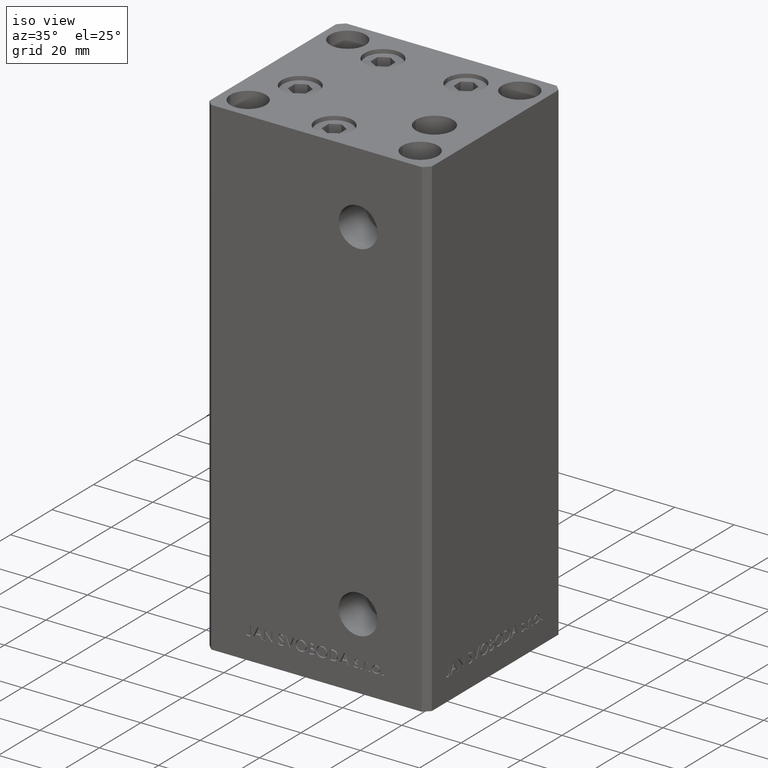
[diagram: clean part render]
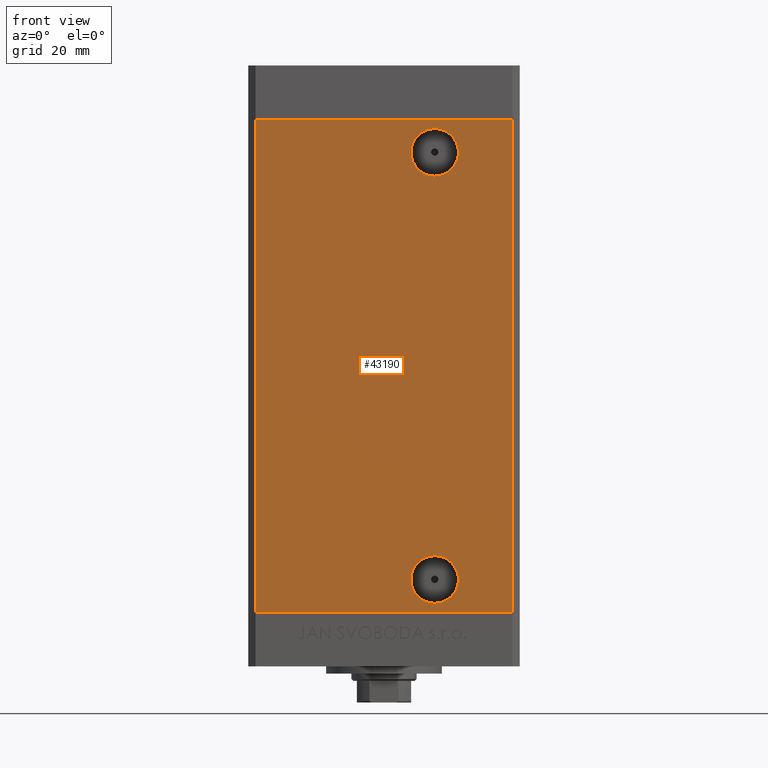
[diagram: tour spotlight — one face highlighted and labeled with its STEP entity id]
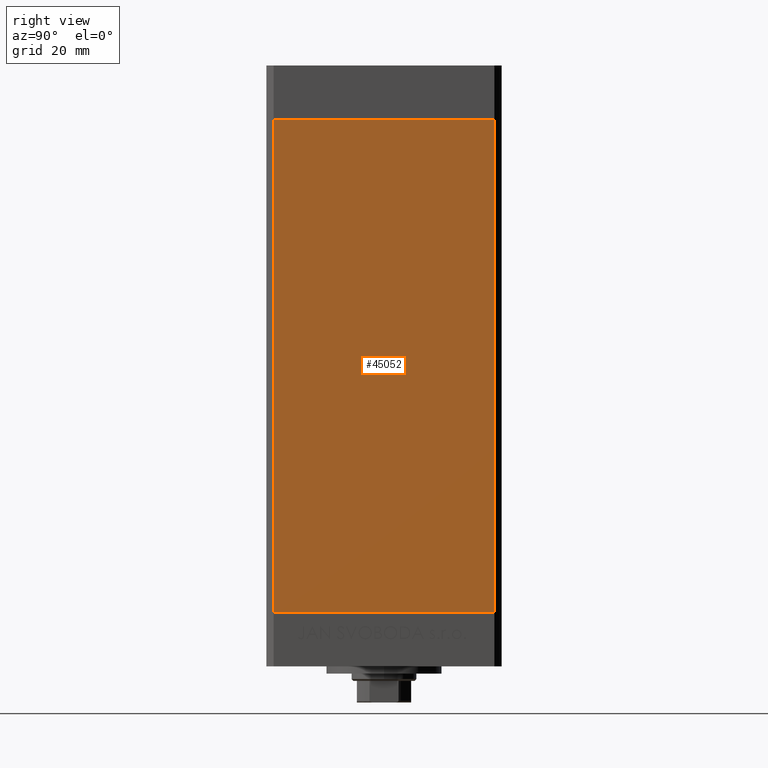
[diagram: tour spotlight — one face highlighted and labeled with its STEP entity id]
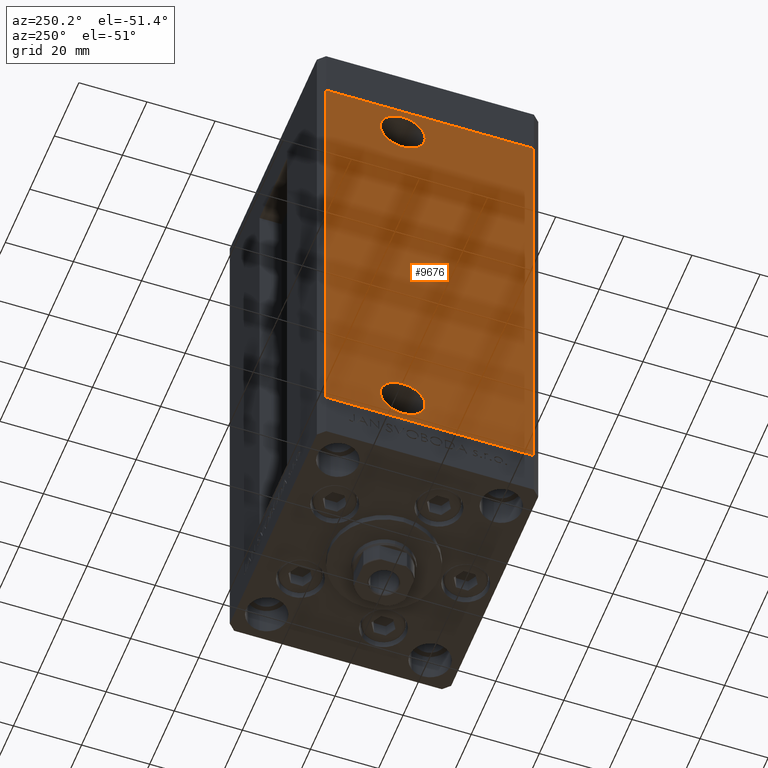
[diagram: tour spotlight — one face highlighted and labeled with its STEP entity id]
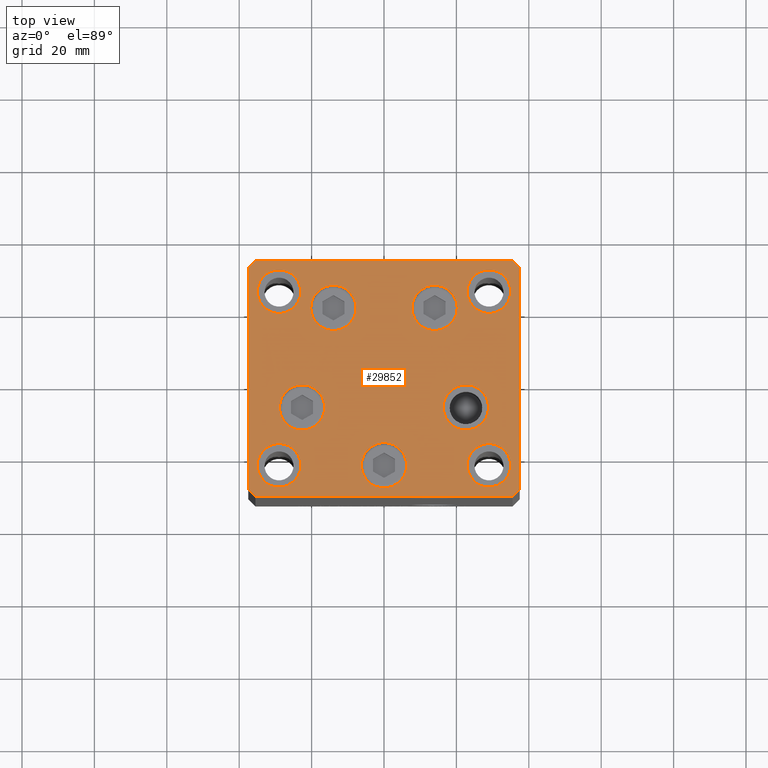
[diagram: tour spotlight — one face highlighted and labeled with its STEP entity id]
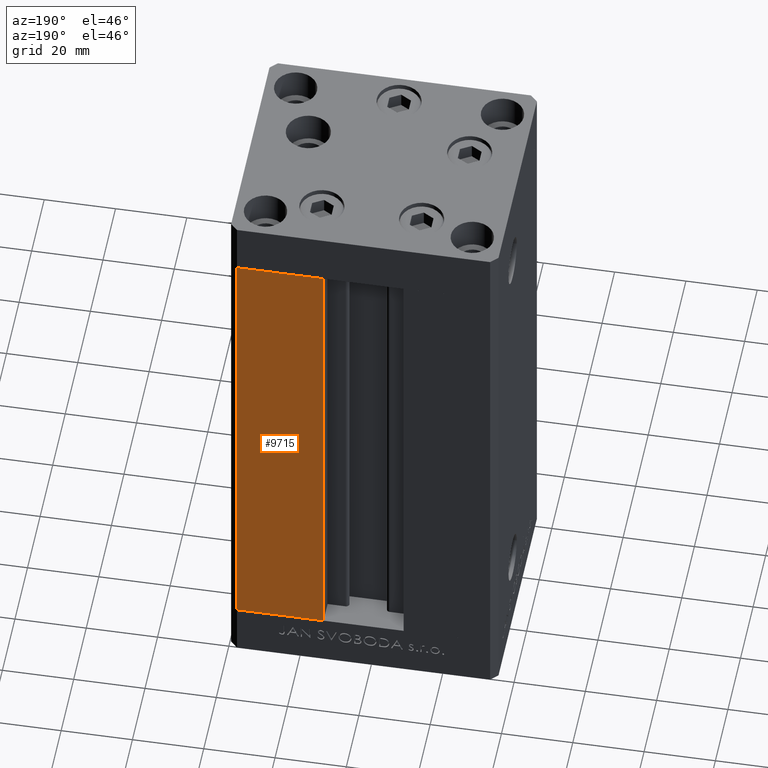
[diagram: tour spotlight — one face highlighted and labeled with its STEP entity id]
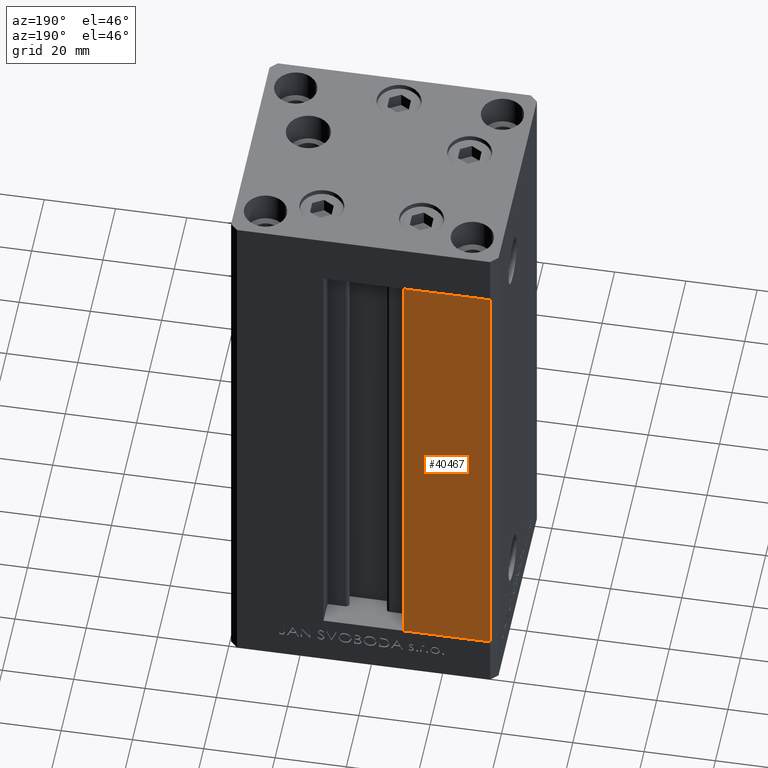
[diagram: tour spotlight — one face highlighted and labeled with its STEP entity id]
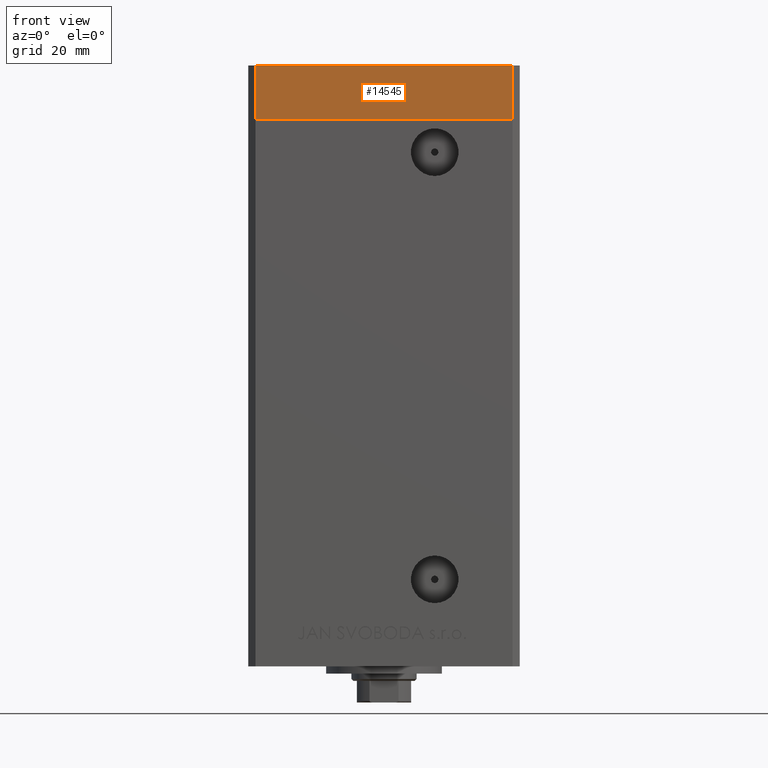
[diagram: tour spotlight — one face highlighted and labeled with its STEP entity id]
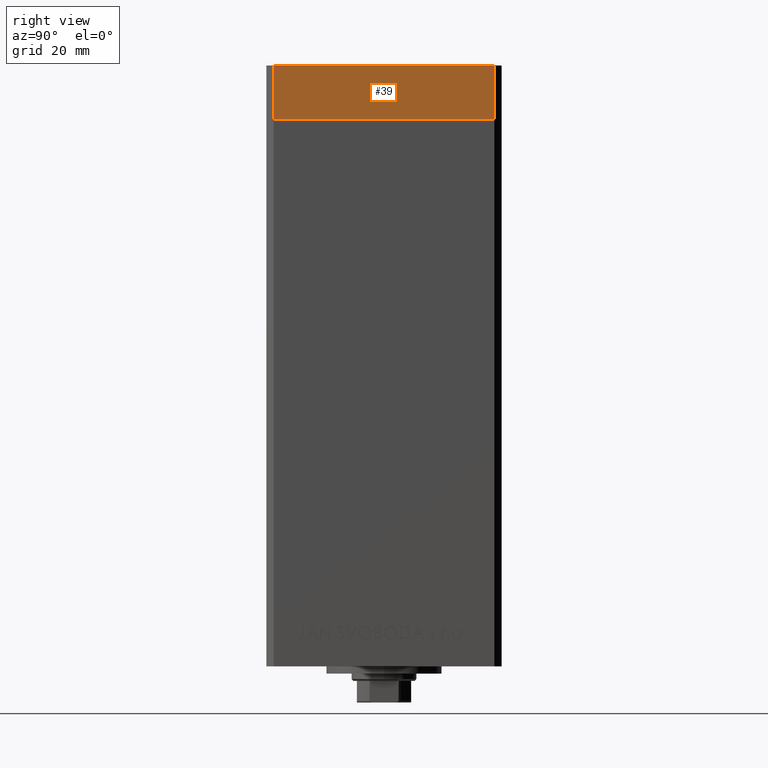
[diagram: tour spotlight — one face highlighted and labeled with its STEP entity id]
A machine part: a face-by-face anatomy tour. The part has 1179 B-rep faces; the first image is the clean iso view, then the 8 largest visible faces are spotlighted one at a time (largest first), each with its STEP entity span.

Face 1 — front view, entity #43190. In plain terms, the highlighted planar face has unit normal (0, 1, 0).
Definition (entity closure, byte-faithful):
#2102 = CARTESIAN_POINT ( 'NONE',  ( 13.99999999999999112, -32.50000000000000000, 15.58000000000000718 ) ) ;
#2916 = FACE_BOUND ( 'NONE', #35611, .T. ) ;
#3412 = PLANE ( 'NONE',  #19473 ) ;
#4023 = DIRECTION ( 'NONE',  ( 0.000000000000000000, 0.000000000000000000, -1.000000000000000000 ) ) ;
#6165 = ORIENTED_EDGE ( 'NONE', *, *, #29281, .T. ) ;
#6493 = EDGE_CURVE ( 'NONE', #25793, #39107, #39932, .T. ) ;
#7378 = ORIENTED_EDGE ( 'NONE', *, *, #47050, .T. ) ;
#7542 = DIRECTION ( 'NONE',  ( 0.000000000000000000, -1.000000000000000000, 0.000000000000000000 ) ) ;
#10699 = DIRECTION ( 'NONE',  ( 0.000000000000000000, 1.000000000000000000, 0.000000000000000000 ) ) ;
#10941 = FACE_OUTER_BOUND ( 'NONE', #40899, .T. ) ;
#11008 = LINE ( 'NONE', #34591, #26040 ) ;
#11549 = CARTESIAN_POINT ( 'NONE',  ( 13.99999999999999112, -32.50000000000000000, 9.000000000000007105 ) ) ;
#11756 = VERTEX_POINT ( 'NONE', #29317 ) ;
#12580 = EDGE_CURVE ( 'NONE', #11756, #41226, #39308, .T. ) ;
#15166 = AXIS2_PLACEMENT_3D ( 'NONE', #26519, #38043, #30763 ) ;
#16385 = DIRECTION ( 'NONE',  ( -0.000000000000000000, 1.000000000000000000, -0.000000000000000000 ) ) ;
#19079 = CARTESIAN_POINT ( 'NONE',  ( 35.49999999999999289, -32.50000000000000000, 0.000000000000000000 ) ) ;
#19473 = AXIS2_PLACEMENT_3D ( 'NONE', #41331, #10699, #26276 ) ;
#22470 = CARTESIAN_POINT ( 'NONE',  ( 35.49999999999999289, -32.50000000000000000, 136.0000000000000000 ) ) ;
#24068 = ORIENTED_EDGE ( 'NONE', *, *, #33069, .F. ) ;
#24472 = LINE ( 'NONE', #39782, #34084 ) ;
#25220 = DIRECTION ( 'NONE',  ( 1.000000000000000000, 0.000000000000000000, 0.000000000000000000 ) ) ;
#25650 = CARTESIAN_POINT ( 'NONE',  ( -35.49999999999999289, -32.50000000000000000, 0.000000000000000000 ) ) ;
#25717 = EDGE_CURVE ( 'NONE', #47593, #31928, #28004, .T. ) ;
#25793 = VERTEX_POINT ( 'NONE', #47574 ) ;
#26024 = FACE_BOUND ( 'NONE', #34524, .T. ) ;
#26040 = VECTOR ( 'NONE', #45429, 1000.000000000000000 ) ;
#26242 = DIRECTION ( 'NONE',  ( -0.000000000000000000, -0.000000000000000000, -1.000000000000000000 ) ) ;
#26276 = DIRECTION ( 'NONE',  ( 0.000000000000000000, -0.000000000000000000, 1.000000000000000000 ) ) ;
#26519 = CARTESIAN_POINT ( 'NONE',  ( 13.99999999999999112, -32.50000000000000000, 9.000000000000007105 ) ) ;
#27134 = DIRECTION ( 'NONE',  ( -0.000000000000000000, 1.000000000000000000, -0.000000000000000000 ) ) ;
#28004 = CIRCLE ( 'NONE', #15166, 6.579999999999998295 ) ;
#29281 = EDGE_CURVE ( 'NONE', #39107, #25793, #42526, .T. ) ;
#29317 = CARTESIAN_POINT ( 'NONE',  ( -35.49999999999999289, -32.50000000000000000, 136.0000000000000000 ) ) ;
#29595 = ORIENTED_EDGE ( 'NONE', *, *, #25717, .F. ) ;
#29899 = DIRECTION ( 'NONE',  ( 0.000000000000000000, 0.000000000000000000, -1.000000000000000000 ) ) ;
#29905 = CARTESIAN_POINT ( 'NONE',  ( 13.99999999999999112, -32.50000000000000000, 127.0000000000000000 ) ) ;
#30242 = LINE ( 'NONE', #22470, #45977 ) ;
#30763 = DIRECTION ( 'NONE',  ( 0.000000000000000000, 0.000000000000000000, -1.000000000000000000 ) ) ;
#30930 = CARTESIAN_POINT ( 'NONE',  ( 35.49999999999999289, -32.50000000000000000, 136.0000000000000000 ) ) ;
#31928 = VERTEX_POINT ( 'NONE', #2102 ) ;
#32114 = AXIS2_PLACEMENT_3D ( 'NONE', #29905, #27134, #4023 ) ;
#33069 = EDGE_CURVE ( 'NONE', #31928, #47593, #39428, .T. ) ;
#34084 = VECTOR ( 'NONE', #25220, 1000.000000000000000 ) ;
#34235 = VERTEX_POINT ( 'NONE', #25650 ) ;
#34524 = EDGE_LOOP ( 'NONE', ( #29595, #24068 ) ) ;
#34591 = CARTESIAN_POINT ( 'NONE',  ( -35.49999999999999289, -32.50000000000000000, 136.0000000000000000 ) ) ;
#34621 = AXIS2_PLACEMENT_3D ( 'NONE', #11549, #7542, #29899 ) ;
#34720 = DIRECTION ( 'NONE',  ( 0.000000000000000000, 0.000000000000000000, -1.000000000000000000 ) ) ;
#35263 = CARTESIAN_POINT ( 'NONE',  ( 13.99999999999999112, -32.50000000000000000, 2.420000000000009699 ) ) ;
#35424 = CARTESIAN_POINT ( 'NONE',  ( 13.99999999999999112, -32.50000000000000000, 133.5800000000000125 ) ) ;
#35611 = EDGE_LOOP ( 'NONE', ( #39472, #6165 ) ) ;
#35798 = EDGE_CURVE ( 'NONE', #41226, #41493, #30242, .T. ) ;
#37749 = ORIENTED_EDGE ( 'NONE', *, *, #35798, .F. ) ;
#38043 = DIRECTION ( 'NONE',  ( 0.000000000000000000, -1.000000000000000000, 0.000000000000000000 ) ) ;
#38496 = CARTESIAN_POINT ( 'NONE',  ( 13.99999999999999112, -32.50000000000000000, 127.0000000000000000 ) ) ;
#38819 = CARTESIAN_POINT ( 'NONE',  ( -35.49999999999999289, -32.50000000000000000, 136.0000000000000000 ) ) ;
#39107 = VERTEX_POINT ( 'NONE', #35424 ) ;
#39308 = LINE ( 'NONE', #38819, #39686 ) ;
#39428 = CIRCLE ( 'NONE', #34621, 6.579999999999998295 ) ;
#39472 = ORIENTED_EDGE ( 'NONE', *, *, #6493, .T. ) ;
#39551 = DIRECTION ( 'NONE',  ( 1.000000000000000000, 0.000000000000000000, 0.000000000000000000 ) ) ;
#39686 = VECTOR ( 'NONE', #39551, 1000.000000000000000 ) ;
#39782 = CARTESIAN_POINT ( 'NONE',  ( -35.49999999999999289, -32.50000000000000000, 0.000000000000000000 ) ) ;
#39932 = CIRCLE ( 'NONE', #46376, 6.580000000000002736 ) ;
#40899 = EDGE_LOOP ( 'NONE', ( #47456, #37749, #45741, #7378 ) ) ;
#41226 = VERTEX_POINT ( 'NONE', #30930 ) ;
#41331 = CARTESIAN_POINT ( 'NONE',  ( -35.49999999999999289, -32.50000000000000000, 136.0000000000000000 ) ) ;
#41493 = VERTEX_POINT ( 'NONE', #19079 ) ;
#42526 = CIRCLE ( 'NONE', #32114, 6.580000000000002736 ) ;
#43190 = ADVANCED_FACE ( 'NONE', ( #26024, #10941, #2916 ), #3412, .F. ) ;
#45429 = DIRECTION ( 'NONE',  ( -0.000000000000000000, -0.000000000000000000, -1.000000000000000000 ) ) ;
#45741 = ORIENTED_EDGE ( 'NONE', *, *, #12580, .F. ) ;
#45977 = VECTOR ( 'NONE', #26242, 1000.000000000000000 ) ;
#46376 = AXIS2_PLACEMENT_3D ( 'NONE', #38496, #16385, #34720 ) ;
#47050 = EDGE_CURVE ( 'NONE', #11756, #34235, #11008, .T. ) ;
#47456 = ORIENTED_EDGE ( 'NONE', *, *, #47678, .T. ) ;
#47574 = CARTESIAN_POINT ( 'NONE',  ( 13.99999999999999112, -32.50000000000000000, 120.4200000000000017 ) ) ;
#47593 = VERTEX_POINT ( 'NONE', #35263 ) ;
#47678 = EDGE_CURVE ( 'NONE', #34235, #41493, #24472, .T. ) ;

Face 2 — right view, entity #45052. In plain terms, the highlighted planar face has unit normal (1, -0, 0).
Definition (entity closure, byte-faithful):
#207 = EDGE_CURVE ( 'NONE', #10408, #33002, #48279, .T. ) ;
#2319 = LINE ( 'NONE', #25421, #28050 ) ;
#3281 = CARTESIAN_POINT ( 'NONE',  ( 37.49999999999999289, -30.50000000000000000, 0.000000000000000000 ) ) ;
#3690 = ORIENTED_EDGE ( 'NONE', *, *, #33306, .F. ) ;
#4266 = CARTESIAN_POINT ( 'NONE',  ( 37.49999999999999289, -30.50000000000000000, 136.0000000000000000 ) ) ;
#9107 = VECTOR ( 'NONE', #30907, 1000.000000000000000 ) ;
#9838 = CARTESIAN_POINT ( 'NONE',  ( 37.49999999999999289, -30.50000000000000000, 136.0000000000000000 ) ) ;
#9955 = VERTEX_POINT ( 'NONE', #37977 ) ;
#10408 = VERTEX_POINT ( 'NONE', #4266 ) ;
#10752 = LINE ( 'NONE', #41627, #30618 ) ;
#11683 = ORIENTED_EDGE ( 'NONE', *, *, #23038, .T. ) ;
#12477 = ORIENTED_EDGE ( 'NONE', *, *, #44828, .F. ) ;
#14786 = CARTESIAN_POINT ( 'NONE',  ( 37.50000000000000711, 30.50000000000000000, 136.0000000000000000 ) ) ;
#15280 = DIRECTION ( 'NONE',  ( 2.275047181608927644E-16, 1.000000000000000000, 0.000000000000000000 ) ) ;
#15587 = CARTESIAN_POINT ( 'NONE',  ( 37.50000000000000711, 30.50000000000000000, 0.000000000000000000 ) ) ;
#19807 = VECTOR ( 'NONE', #29430, 1000.000000000000000 ) ;
#23038 = EDGE_CURVE ( 'NONE', #38045, #10408, #2319, .T. ) ;
#25421 = CARTESIAN_POINT ( 'NONE',  ( 37.50000000000000711, 30.50000000000000000, 136.0000000000000000 ) ) ;
#28050 = VECTOR ( 'NONE', #36953, 1000.000000000000000 ) ;
#29430 = DIRECTION ( 'NONE',  ( -0.000000000000000000, -0.000000000000000000, -1.000000000000000000 ) ) ;
#30349 = FACE_OUTER_BOUND ( 'NONE', #40715, .T. ) ;
#30618 = VECTOR ( 'NONE', #49684, 1000.000000000000000 ) ;
#30907 = DIRECTION ( 'NONE',  ( -2.275047181608927644E-16, -1.000000000000000000, 0.000000000000000000 ) ) ;
#31158 = LINE ( 'NONE', #15587, #9107 ) ;
#33002 = VERTEX_POINT ( 'NONE', #3281 ) ;
#33162 = AXIS2_PLACEMENT_3D ( 'NONE', #14786, #45683, #15280 ) ;
#33306 = EDGE_CURVE ( 'NONE', #38045, #9955, #10752, .T. ) ;
#35271 = PLANE ( 'NONE',  #33162 ) ;
#36953 = DIRECTION ( 'NONE',  ( -2.275047181608927644E-16, -1.000000000000000000, 0.000000000000000000 ) ) ;
#37977 = CARTESIAN_POINT ( 'NONE',  ( 37.50000000000000711, 30.50000000000000000, 0.000000000000000000 ) ) ;
#38045 = VERTEX_POINT ( 'NONE', #46945 ) ;
#40715 = EDGE_LOOP ( 'NONE', ( #12477, #3690, #11683, #45621 ) ) ;
#41627 = CARTESIAN_POINT ( 'NONE',  ( 37.50000000000000711, 30.50000000000000000, 136.0000000000000000 ) ) ;
#44828 = EDGE_CURVE ( 'NONE', #9955, #33002, #31158, .T. ) ;
#45052 = ADVANCED_FACE ( 'NONE', ( #30349 ), #35271, .T. ) ;
#45621 = ORIENTED_EDGE ( 'NONE', *, *, #207, .T. ) ;
#45683 = DIRECTION ( 'NONE',  ( 1.000000000000000000, -2.275047181608927644E-16, 0.000000000000000000 ) ) ;
#46945 = CARTESIAN_POINT ( 'NONE',  ( 37.50000000000000711, 30.50000000000000000, 136.0000000000000000 ) ) ;
#48279 = LINE ( 'NONE', #9838, #19807 ) ;
#49684 = DIRECTION ( 'NONE',  ( -0.000000000000000000, -0.000000000000000000, -1.000000000000000000 ) ) ;

Face 3 — auxiliary view, entity #9676. In plain terms, the highlighted planar face has unit normal (1, 0, 0).
Definition (entity closure, byte-faithful):
#532 = CIRCLE ( 'NONE', #10948, 6.580000000000015170 ) ;
#539 = CIRCLE ( 'NONE', #8442, 6.580000000000015170 ) ;
#860 = LINE ( 'NONE', #8142, #34884 ) ;
#1103 = CARTESIAN_POINT ( 'NONE',  ( -37.50000000000000000, 14.58000000000000718, 127.0000000000000000 ) ) ;
#1363 = DIRECTION ( 'NONE',  ( 0.000000000000000000, -1.000000000000000000, 0.000000000000000000 ) ) ;
#1560 = VERTEX_POINT ( 'NONE', #17324 ) ;
#1734 = LINE ( 'NONE', #44925, #44141 ) ;
#2456 = CIRCLE ( 'NONE', #25725, 6.580000000000002736 ) ;
#2666 = AXIS2_PLACEMENT_3D ( 'NONE', #15950, #23252, #35262 ) ;
#3600 = EDGE_LOOP ( 'NONE', ( #16630, #16863 ) ) ;
#3678 = AXIS2_PLACEMENT_3D ( 'NONE', #42616, #4440, #16484 ) ;
#3781 = CARTESIAN_POINT ( 'NONE',  ( -37.50000000000000711, 30.50000000000000000, 0.000000000000000000 ) ) ;
#4277 = VERTEX_POINT ( 'NONE', #33576 ) ;
#4440 = DIRECTION ( 'NONE',  ( 1.000000000000000000, 2.275047181608927644E-16, -0.000000000000000000 ) ) ;
#5645 = CARTESIAN_POINT ( 'NONE',  ( -37.50000000000000000, 7.999999999999991118, 127.0000000000000000 ) ) ;
#6243 = DIRECTION ( 'NONE',  ( -0.000000000000000000, -0.000000000000000000, -1.000000000000000000 ) ) ;
#6785 = DIRECTION ( 'NONE',  ( -0.000000000000000000, -0.000000000000000000, -1.000000000000000000 ) ) ;
#7168 = CARTESIAN_POINT ( 'NONE',  ( -37.49999999999999289, -30.50000000000000000, 0.000000000000000000 ) ) ;
#7897 = DIRECTION ( 'NONE',  ( 2.275047181608927644E-16, -1.000000000000000000, 0.000000000000000000 ) ) ;
#8021 = CARTESIAN_POINT ( 'NONE',  ( -37.50000000000000000, 1.419999999999975060, 9.000000000000007105 ) ) ;
#8142 = CARTESIAN_POINT ( 'NONE',  ( -37.50000000000000711, 30.50000000000000000, 0.000000000000000000 ) ) ;
#8306 = VERTEX_POINT ( 'NONE', #34549 ) ;
#8442 = AXIS2_PLACEMENT_3D ( 'NONE', #5645, #20968, #23386 ) ;
#8705 = FACE_BOUND ( 'NONE', #36519, .T. ) ;
#8891 = EDGE_CURVE ( 'NONE', #34285, #21515, #860, .T. ) ;
#8948 = DIRECTION ( 'NONE',  ( -1.000000000000000000, -2.275047181608927644E-16, 0.000000000000000000 ) ) ;
#8952 = FACE_BOUND ( 'NONE', #3600, .T. ) ;
#9676 = ADVANCED_FACE ( 'NONE', ( #8705, #8952, #35794 ), #43602, .F. ) ;
#10948 = AXIS2_PLACEMENT_3D ( 'NONE', #39818, #8948, #16480 ) ;
#10968 = DIRECTION ( 'NONE',  ( 2.275047181608927644E-16, -1.000000000000000000, 0.000000000000000000 ) ) ;
#12033 = EDGE_CURVE ( 'NONE', #13734, #4277, #539, .T. ) ;
#12478 = ORIENTED_EDGE ( 'NONE', *, *, #44256, .F. ) ;
#12831 = VECTOR ( 'NONE', #10968, 1000.000000000000000 ) ;
#13734 = VERTEX_POINT ( 'NONE', #1103 ) ;
#14364 = ORIENTED_EDGE ( 'NONE', *, *, #8891, .T. ) ;
#14702 = CIRCLE ( 'NONE', #2666, 6.580000000000002736 ) ;
#14955 = EDGE_CURVE ( 'NONE', #4277, #13734, #532, .T. ) ;
#15950 = CARTESIAN_POINT ( 'NONE',  ( -37.50000000000000000, 7.999999999999977796, 9.000000000000007105 ) ) ;
#16480 = DIRECTION ( 'NONE',  ( 0.000000000000000000, -1.000000000000000000, 0.000000000000000000 ) ) ;
#16484 = DIRECTION ( 'NONE',  ( -2.275047181608927644E-16, 1.000000000000000000, 0.000000000000000000 ) ) ;
#16630 = ORIENTED_EDGE ( 'NONE', *, *, #14955, .F. ) ;
#16863 = ORIENTED_EDGE ( 'NONE', *, *, #12033, .F. ) ;
#16958 = VECTOR ( 'NONE', #6785, 1000.000000000000000 ) ;
#17324 = CARTESIAN_POINT ( 'NONE',  ( -37.50000000000000000, 14.57999999999998053, 9.000000000000007105 ) ) ;
#20968 = DIRECTION ( 'NONE',  ( -1.000000000000000000, -2.275047181608927644E-16, 0.000000000000000000 ) ) ;
#21515 = VERTEX_POINT ( 'NONE', #7168 ) ;
#23252 = DIRECTION ( 'NONE',  ( -1.000000000000000000, -2.275047181608927644E-16, 0.000000000000000000 ) ) ;
#23386 = DIRECTION ( 'NONE',  ( 0.000000000000000000, -1.000000000000000000, 0.000000000000000000 ) ) ;
#24405 = EDGE_CURVE ( 'NONE', #41448, #8306, #41604, .T. ) ;
#25725 = AXIS2_PLACEMENT_3D ( 'NONE', #35741, #35250, #1363 ) ;
#25822 = EDGE_CURVE ( 'NONE', #36200, #1560, #2456, .T. ) ;
#26381 = CARTESIAN_POINT ( 'NONE',  ( -37.50000000000000711, 30.50000000000000000, 136.0000000000000000 ) ) ;
#26383 = LINE ( 'NONE', #49246, #16958 ) ;
#29497 = EDGE_CURVE ( 'NONE', #41448, #34285, #1734, .T. ) ;
#32205 = EDGE_CURVE ( 'NONE', #8306, #21515, #26383, .T. ) ;
#33576 = CARTESIAN_POINT ( 'NONE',  ( -37.50000000000000000, 1.419999999999975948, 127.0000000000000000 ) ) ;
#34056 = CARTESIAN_POINT ( 'NONE',  ( -37.50000000000000711, 30.50000000000000000, 136.0000000000000000 ) ) ;
#34285 = VERTEX_POINT ( 'NONE', #3781 ) ;
#34460 = EDGE_LOOP ( 'NONE', ( #14364, #49341, #46601, #39058 ) ) ;
#34549 = CARTESIAN_POINT ( 'NONE',  ( -37.49999999999999289, -30.50000000000000000, 136.0000000000000000 ) ) ;
#34884 = VECTOR ( 'NONE', #7897, 1000.000000000000000 ) ;
#35250 = DIRECTION ( 'NONE',  ( -1.000000000000000000, -2.275047181608927644E-16, 0.000000000000000000 ) ) ;
#35262 = DIRECTION ( 'NONE',  ( 0.000000000000000000, -1.000000000000000000, 0.000000000000000000 ) ) ;
#35741 = CARTESIAN_POINT ( 'NONE',  ( -37.50000000000000000, 7.999999999999977796, 9.000000000000007105 ) ) ;
#35794 = FACE_OUTER_BOUND ( 'NONE', #34460, .T. ) ;
#36200 = VERTEX_POINT ( 'NONE', #8021 ) ;
#36519 = EDGE_LOOP ( 'NONE', ( #45028, #12478 ) ) ;
#39058 = ORIENTED_EDGE ( 'NONE', *, *, #29497, .T. ) ;
#39818 = CARTESIAN_POINT ( 'NONE',  ( -37.50000000000000000, 7.999999999999991118, 127.0000000000000000 ) ) ;
#41448 = VERTEX_POINT ( 'NONE', #26381 ) ;
#41604 = LINE ( 'NONE', #34056, #12831 ) ;
#42616 = CARTESIAN_POINT ( 'NONE',  ( -37.50000000000000711, 30.50000000000000000, 136.0000000000000000 ) ) ;
#43602 = PLANE ( 'NONE',  #3678 ) ;
#44141 = VECTOR ( 'NONE', #6243, 1000.000000000000000 ) ;
#44256 = EDGE_CURVE ( 'NONE', #1560, #36200, #14702, .T. ) ;
#44925 = CARTESIAN_POINT ( 'NONE',  ( -37.50000000000000711, 30.50000000000000000, 136.0000000000000000 ) ) ;
#45028 = ORIENTED_EDGE ( 'NONE', *, *, #25822, .F. ) ;
#46601 = ORIENTED_EDGE ( 'NONE', *, *, #24405, .F. ) ;
#49246 = CARTESIAN_POINT ( 'NONE',  ( -37.49999999999999289, -30.50000000000000000, 136.0000000000000000 ) ) ;
#49341 = ORIENTED_EDGE ( 'NONE', *, *, #32205, .F. ) ;

Face 4 — top view, entity #29852. In plain terms, the highlighted planar face has unit normal (0, 0, 1).
Definition (entity closure, byte-faithful):
#339 = ORIENTED_EDGE ( 'NONE', *, *, #1004, .T. ) ;
#479 = CARTESIAN_POINT ( 'NONE',  ( -6.249999999999997335, -24.00000000000000000, 0.000000000000000000 ) ) ;
#542 = DIRECTION ( 'NONE',  ( 0.000000000000000000, 0.000000000000000000, 1.000000000000000000 ) ) ;
#666 = EDGE_CURVE ( 'NONE', #1476, #5441, #4224, .T. ) ;
#829 = ORIENTED_EDGE ( 'NONE', *, *, #24744, .T. ) ;
#839 = DIRECTION ( 'NONE',  ( 0.000000000000000000, -0.000000000000000000, -1.000000000000000000 ) ) ;
#1004 = EDGE_CURVE ( 'NONE', #27810, #1217, #45520, .T. ) ;
#1088 = AXIS2_PLACEMENT_3D ( 'NONE', #3177, #49394, #33557 ) ;
#1217 = VERTEX_POINT ( 'NONE', #35450 ) ;
#1464 = CARTESIAN_POINT ( 'NONE',  ( 23.00000000000001066, -23.99999999999999289, 0.000000000000000000 ) ) ;
#1476 = VERTEX_POINT ( 'NONE', #16330 ) ;
#1623 = CIRCLE ( 'NONE', #30480, 6.250000000000000000 ) ;
#1781 = FACE_BOUND ( 'NONE', #21760, .T. ) ;
#1865 = EDGE_LOOP ( 'NONE', ( #24478, #6985, #31509, #26781, #31084, #46216, #829, #27606 ) ) ;
#1882 = VERTEX_POINT ( 'NONE', #48166 ) ;
#1964 = EDGE_LOOP ( 'NONE', ( #6125, #38050 ) ) ;
#2283 = AXIS2_PLACEMENT_3D ( 'NONE', #7208, #41362, #3200 ) ;
#2288 = FACE_BOUND ( 'NONE', #3118, .T. ) ;
#3118 = EDGE_LOOP ( 'NONE', ( #12418, #48331 ) ) ;
#3177 = CARTESIAN_POINT ( 'NONE',  ( -29.00000000000001066, 24.00000000000000711, 0.000000000000000000 ) ) ;
#3181 = DIRECTION ( 'NONE',  ( 0.000000000000000000, -0.000000000000000000, -1.000000000000000000 ) ) ;
#3200 = DIRECTION ( 'NONE',  ( 1.000000000000000000, 0.000000000000000000, 0.000000000000000000 ) ) ;
#3244 = AXIS2_PLACEMENT_3D ( 'NONE', #8525, #28350, #23849 ) ;
#3953 = LINE ( 'NONE', #31074, #19545 ) ;
#4224 = LINE ( 'NONE', #35821, #38296 ) ;
#4334 = DIRECTION ( 'NONE',  ( 1.000000000000000000, 0.000000000000000000, 0.000000000000000000 ) ) ;
#4350 = CARTESIAN_POINT ( 'NONE',  ( 13.99106857963322348, 19.50000000000000000, 0.000000000000000000 ) ) ;
#4368 = CIRCLE ( 'NONE', #12393, 6.250000000000001776 ) ;
#4469 = EDGE_LOOP ( 'NONE', ( #34608, #10211 ) ) ;
#4855 = EDGE_CURVE ( 'NONE', #1882, #1476, #47737, .T. ) ;
#5441 = VERTEX_POINT ( 'NONE', #16475 ) ;
#5462 = VERTEX_POINT ( 'NONE', #29521 ) ;
#5504 = EDGE_CURVE ( 'NONE', #31563, #1882, #13943, .T. ) ;
#5540 = DIRECTION ( 'NONE',  ( 1.000000000000000000, 0.000000000000000000, 0.000000000000000000 ) ) ;
#5705 = AXIS2_PLACEMENT_3D ( 'NONE', #43538, #24712, #28465 ) ;
#5916 = VECTOR ( 'NONE', #6045, 1000.000000000000000 ) ;
#6042 = FACE_BOUND ( 'NONE', #10517, .T. ) ;
#6045 = DIRECTION ( 'NONE',  ( -1.478780668045802821E-15, 1.000000000000000000, 0.000000000000000000 ) ) ;
#6125 = ORIENTED_EDGE ( 'NONE', *, *, #45458, .T. ) ;
#6314 = ORIENTED_EDGE ( 'NONE', *, *, #31917, .T. ) ;
#6370 = CARTESIAN_POINT ( 'NONE',  ( 37.49999999999992184, 30.50000000000001066, 0.000000000000000000 ) ) ;
#6691 = CARTESIAN_POINT ( 'NONE',  ( 37.49999999999992184, 30.50000000000001066, 0.000000000000000000 ) ) ;
#6845 = VERTEX_POINT ( 'NONE', #38442 ) ;
#6894 = DIRECTION ( 'NONE',  ( 0.000000000000000000, -0.000000000000000000, -1.000000000000000000 ) ) ;
#6926 = DIRECTION ( 'NONE',  ( 1.000000000000000000, 0.000000000000000000, 0.000000000000000000 ) ) ;
#6985 = ORIENTED_EDGE ( 'NONE', *, *, #666, .T. ) ;
#7197 = AXIS2_PLACEMENT_3D ( 'NONE', #20355, #542, #38696 ) ;
#7208 = CARTESIAN_POINT ( 'NONE',  ( 22.62741699796951877, -8.000000000000000000, 0.000000000000000000 ) ) ;
#7224 = FACE_BOUND ( 'NONE', #20351, .T. ) ;
#7572 = EDGE_CURVE ( 'NONE', #44112, #18332, #38487, .T. ) ;
#8106 = CARTESIAN_POINT ( 'NONE',  ( 29.00000000000001066, -23.99999999999999289, 0.000000000000000000 ) ) ;
#8493 = DIRECTION ( 'NONE',  ( 1.000000000000000000, 0.000000000000000000, 0.000000000000000000 ) ) ;
#8525 = CARTESIAN_POINT ( 'NONE',  ( 29.00000000000001066, 24.00000000000000711, 0.000000000000000000 ) ) ;
#8651 = VECTOR ( 'NONE', #16146, 1000.000000000000000 ) ;
#9569 = CARTESIAN_POINT ( 'NONE',  ( 37.50000000000001421, -30.50000000000000711, 0.000000000000000000 ) ) ;
#9582 = CARTESIAN_POINT ( 'NONE',  ( -16.37741699796951877, -8.000000000000005329, 0.000000000000000000 ) ) ;
#9587 = CIRCLE ( 'NONE', #37653, 6.250000000000000000 ) ;
#9647 = AXIS2_PLACEMENT_3D ( 'NONE', #39945, #45161, #5540 ) ;
#9660 = CARTESIAN_POINT ( 'NONE',  ( -29.00000000000001066, -23.99999999999999289, 0.000000000000000000 ) ) ;
#9932 = AXIS2_PLACEMENT_3D ( 'NONE', #4350, #839, #38001 ) ;
#10211 = ORIENTED_EDGE ( 'NONE', *, *, #25630, .F. ) ;
#10405 = AXIS2_PLACEMENT_3D ( 'NONE', #48526, #22138, #37187 ) ;
#10517 = EDGE_LOOP ( 'NONE', ( #11552, #20845 ) ) ;
#11332 = CARTESIAN_POINT ( 'NONE',  ( -23.00000000000001421, -23.99999999999999289, 0.000000000000000000 ) ) ;
#11552 = ORIENTED_EDGE ( 'NONE', *, *, #23379, .T. ) ;
#11731 = CARTESIAN_POINT ( 'NONE',  ( -37.50000000000001421, 30.49999999999998579, 0.000000000000000000 ) ) ;
#11835 = VERTEX_POINT ( 'NONE', #29805 ) ;
#11995 = EDGE_CURVE ( 'NONE', #12034, #31156, #20448, .T. ) ;
#12034 = VERTEX_POINT ( 'NONE', #11332 ) ;
#12329 = DIRECTION ( 'NONE',  ( 1.000000000000000000, 0.000000000000000000, 0.000000000000000000 ) ) ;
#12393 = AXIS2_PLACEMENT_3D ( 'NONE', #30899, #30164, #15580 ) ;
#12418 = ORIENTED_EDGE ( 'NONE', *, *, #26814, .F. ) ;
#13179 = CARTESIAN_POINT ( 'NONE',  ( -29.00000000000001066, 24.00000000000000711, 0.000000000000000000 ) ) ;
#13316 = DIRECTION ( 'NONE',  ( 0.7071067811865474617, -0.7071067811865474617, 0.000000000000000000 ) ) ;
#13436 = CARTESIAN_POINT ( 'NONE',  ( 13.99106857963322348, 19.50000000000000000, 0.000000000000000000 ) ) ;
#13606 = VERTEX_POINT ( 'NONE', #31961 ) ;
#13943 = LINE ( 'NONE', #29272, #8651 ) ;
#14060 = LINE ( 'NONE', #20850, #24830 ) ;
#14105 = CARTESIAN_POINT ( 'NONE',  ( -28.87741699796952233, -8.000000000000005329, 0.000000000000000000 ) ) ;
#15328 = CARTESIAN_POINT ( 'NONE',  ( 28.87741699796952233, -8.000000000000000000, 0.000000000000000000 ) ) ;
#15382 = CIRCLE ( 'NONE', #43455, 6.000000000000005329 ) ;
#15422 = CARTESIAN_POINT ( 'NONE',  ( 23.00000000000001066, 24.00000000000000711, 0.000000000000000000 ) ) ;
#15580 = DIRECTION ( 'NONE',  ( 1.000000000000000000, 0.000000000000000000, 0.000000000000000000 ) ) ;
#15900 = ORIENTED_EDGE ( 'NONE', *, *, #46828, .T. ) ;
#16146 = DIRECTION ( 'NONE',  ( 4.550094363217855288E-16, -1.000000000000000000, 0.000000000000000000 ) ) ;
#16217 = DIRECTION ( 'NONE',  ( 0.000000000000000000, 0.000000000000000000, 1.000000000000000000 ) ) ;
#16330 = CARTESIAN_POINT ( 'NONE',  ( -35.49999999999998579, -32.50000000000001421, 0.000000000000000000 ) ) ;
#16433 = ORIENTED_EDGE ( 'NONE', *, *, #23664, .T. ) ;
#16475 = CARTESIAN_POINT ( 'NONE',  ( 35.50000000000000711, -32.50000000000000711, 0.000000000000000000 ) ) ;
#17100 = CIRCLE ( 'NONE', #1088, 5.999999999999998224 ) ;
#17139 = DIRECTION ( 'NONE',  ( 1.000000000000000000, 0.000000000000000000, 0.000000000000000000 ) ) ;
#17231 = EDGE_CURVE ( 'NONE', #11835, #23368, #25472, .T. ) ;
#17520 = EDGE_LOOP ( 'NONE', ( #16433, #6314 ) ) ;
#17605 = FACE_OUTER_BOUND ( 'NONE', #1865, .T. ) ;
#18332 = VERTEX_POINT ( 'NONE', #15422 ) ;
#18409 = VERTEX_POINT ( 'NONE', #30247 ) ;
#18499 = ORIENTED_EDGE ( 'NONE', *, *, #7572, .F. ) ;
#18535 = FACE_BOUND ( 'NONE', #17520, .T. ) ;
#19189 = CIRCLE ( 'NONE', #32803, 5.999999999999998224 ) ;
#19227 = CIRCLE ( 'NONE', #10405, 6.250000000000001776 ) ;
#19431 = VERTEX_POINT ( 'NONE', #1464 ) ;
#19541 = DIRECTION ( 'NONE',  ( 1.000000000000000000, 9.773090005503140331E-17, 0.000000000000000000 ) ) ;
#19545 = VECTOR ( 'NONE', #49682, 1000.000000000000000 ) ;
#19751 = EDGE_CURVE ( 'NONE', #1217, #27810, #24723, .T. ) ;
#20232 = DIRECTION ( 'NONE',  ( 1.000000000000000000, 0.000000000000000000, 0.000000000000000000 ) ) ;
#20234 = DIRECTION ( 'NONE',  ( 0.000000000000000000, -0.000000000000000000, -1.000000000000000000 ) ) ;
#20351 = EDGE_LOOP ( 'NONE', ( #15900, #26028 ) ) ;
#20355 = CARTESIAN_POINT ( 'NONE',  ( 29.00000000000001066, 24.00000000000000711, 0.000000000000000000 ) ) ;
#20448 = CIRCLE ( 'NONE', #42923, 5.999999999999998224 ) ;
#20845 = ORIENTED_EDGE ( 'NONE', *, *, #17231, .T. ) ;
#20850 = CARTESIAN_POINT ( 'NONE',  ( 35.49999999999992184, 32.50000000000000711, 0.000000000000000000 ) ) ;
#21473 = DIRECTION ( 'NONE',  ( 1.000000000000000000, 0.000000000000000000, 0.000000000000000000 ) ) ;
#21635 = AXIS2_PLACEMENT_3D ( 'NONE', #8106, #42511, #4334 ) ;
#21760 = EDGE_LOOP ( 'NONE', ( #23735, #47097 ) ) ;
#22014 = DIRECTION ( 'NONE',  ( 1.000000000000000000, 0.000000000000000000, 0.000000000000000000 ) ) ;
#22138 = DIRECTION ( 'NONE',  ( 0.000000000000000000, -0.000000000000000000, -1.000000000000000000 ) ) ;
#22488 = CARTESIAN_POINT ( 'NONE',  ( 35.00000000000001421, -23.99999999999999289, 0.000000000000000000 ) ) ;
#22549 = FACE_BOUND ( 'NONE', #32735, .T. ) ;
#23317 = AXIS2_PLACEMENT_3D ( 'NONE', #13179, #16217, #20232 ) ;
#23368 = VERTEX_POINT ( 'NONE', #479 ) ;
#23379 = EDGE_CURVE ( 'NONE', #23368, #11835, #9587, .T. ) ;
#23664 = EDGE_CURVE ( 'NONE', #44559, #45799, #36057, .T. ) ;
#23735 = ORIENTED_EDGE ( 'NONE', *, *, #30028, .F. ) ;
#23849 = DIRECTION ( 'NONE',  ( 1.000000000000000000, 0.000000000000000000, 0.000000000000000000 ) ) ;
#23938 = EDGE_CURVE ( 'NONE', #42795, #18409, #14060, .T. ) ;
#24222 = VERTEX_POINT ( 'NONE', #29078 ) ;
#24477 = EDGE_CURVE ( 'NONE', #38676, #24222, #1623, .T. ) ;
#24478 = ORIENTED_EDGE ( 'NONE', *, *, #4855, .T. ) ;
#24712 = DIRECTION ( 'NONE',  ( 0.000000000000000000, -0.000000000000000000, -1.000000000000000000 ) ) ;
#24723 = CIRCLE ( 'NONE', #2283, 6.250000000000001776 ) ;
#24744 = EDGE_CURVE ( 'NONE', #18409, #31563, #26067, .T. ) ;
#24830 = VECTOR ( 'NONE', #36906, 1000.000000000000000 ) ;
#24879 = CARTESIAN_POINT ( 'NONE',  ( -37.49999999999998579, -30.50000000000001421, 0.000000000000000000 ) ) ;
#25472 = CIRCLE ( 'NONE', #38299, 6.250000000000000000 ) ;
#25482 = DIRECTION ( 'NONE',  ( 1.000000000000000000, 0.000000000000000000, 0.000000000000000000 ) ) ;
#25630 = EDGE_CURVE ( 'NONE', #31156, #12034, #19189, .T. ) ;
#25851 = EDGE_LOOP ( 'NONE', ( #26057, #339 ) ) ;
#26028 = ORIENTED_EDGE ( 'NONE', *, *, #27692, .T. ) ;
#26057 = ORIENTED_EDGE ( 'NONE', *, *, #19751, .T. ) ;
#26067 = LINE ( 'NONE', #45159, #31306 ) ;
#26520 = CIRCLE ( 'NONE', #23317, 5.999999999999998224 ) ;
#26781 = ORIENTED_EDGE ( 'NONE', *, *, #37264, .T. ) ;
#26814 = EDGE_CURVE ( 'NONE', #38550, #19431, #36012, .T. ) ;
#26926 = CARTESIAN_POINT ( 'NONE',  ( 29.00000000000001066, -23.99999999999999289, 0.000000000000000000 ) ) ;
#27101 = DIRECTION ( 'NONE',  ( 0.000000000000000000, -0.000000000000000000, -1.000000000000000000 ) ) ;
#27451 = CARTESIAN_POINT ( 'NONE',  ( 22.62741699796951877, -8.000000000000000000, 0.000000000000000000 ) ) ;
#27606 = ORIENTED_EDGE ( 'NONE', *, *, #5504, .T. ) ;
#27692 = EDGE_CURVE ( 'NONE', #39779, #44805, #19227, .T. ) ;
#27810 = VERTEX_POINT ( 'NONE', #15328 ) ;
#27867 = AXIS2_PLACEMENT_3D ( 'NONE', #27451, #3181, #22014 ) ;
#28350 = DIRECTION ( 'NONE',  ( 0.000000000000000000, 0.000000000000000000, 1.000000000000000000 ) ) ;
#28465 = DIRECTION ( 'NONE',  ( 1.000000000000000000, 0.000000000000000000, 0.000000000000000000 ) ) ;
#28975 = CIRCLE ( 'NONE', #5705, 6.250000000000000000 ) ;
#29042 = DIRECTION ( 'NONE',  ( 0.000000000000000000, 0.000000000000000000, 1.000000000000000000 ) ) ;
#29078 = CARTESIAN_POINT ( 'NONE',  ( 7.741068579633223479, 19.50000000000000000, 0.000000000000000000 ) ) ;
#29157 = CARTESIAN_POINT ( 'NONE',  ( -35.00000000000000711, -23.99999999999999289, 0.000000000000000000 ) ) ;
#29272 = CARTESIAN_POINT ( 'NONE',  ( -37.50000000000001421, 30.49999999999998579, 0.000000000000000000 ) ) ;
#29428 = EDGE_CURVE ( 'NONE', #18332, #44112, #32913, .T. ) ;
#29521 = CARTESIAN_POINT ( 'NONE',  ( 37.50000000000001421, -30.50000000000000711, 0.000000000000000000 ) ) ;
#29553 = DIRECTION ( 'NONE',  ( -0.7071067811865482389, 0.7071067811865469066, 0.000000000000000000 ) ) ;
#29793 = CARTESIAN_POINT ( 'NONE',  ( 35.00000000000001421, 24.00000000000000711, 0.000000000000000000 ) ) ;
#29805 = CARTESIAN_POINT ( 'NONE',  ( 6.250000000000002665, -24.00000000000000000, 0.000000000000000000 ) ) ;
#29852 = ADVANCED_FACE ( 'NONE', ( #18535, #43973, #33838, #6042, #7224, #2288, #36164, #1781, #22549, #17605 ), #32909, .T. ) ;
#30028 = EDGE_CURVE ( 'NONE', #13606, #6845, #26520, .T. ) ;
#30164 = DIRECTION ( 'NONE',  ( 0.000000000000000000, -0.000000000000000000, -1.000000000000000000 ) ) ;
#30247 = CARTESIAN_POINT ( 'NONE',  ( -35.50000000000002842, 32.49999999999999289, 0.000000000000000000 ) ) ;
#30480 = AXIS2_PLACEMENT_3D ( 'NONE', #13436, #20234, #43333 ) ;
#30899 = CARTESIAN_POINT ( 'NONE',  ( -22.62741699796951877, -8.000000000000005329, 0.000000000000000000 ) ) ;
#31074 = CARTESIAN_POINT ( 'NONE',  ( 35.50000000000000711, -32.50000000000000711, 0.000000000000000000 ) ) ;
#31084 = ORIENTED_EDGE ( 'NONE', *, *, #47485, .T. ) ;
#31156 = VERTEX_POINT ( 'NONE', #29157 ) ;
#31306 = VECTOR ( 'NONE', #44665, 1000.000000000000000 ) ;
#31509 = ORIENTED_EDGE ( 'NONE', *, *, #37387, .T. ) ;
#31563 = VERTEX_POINT ( 'NONE', #11731 ) ;
#31647 = VECTOR ( 'NONE', #29553, 999.9999999999998863 ) ;
#31917 = EDGE_CURVE ( 'NONE', #45799, #44559, #28975, .T. ) ;
#31961 = CARTESIAN_POINT ( 'NONE',  ( -23.00000000000001421, 24.00000000000000711, 0.000000000000000000 ) ) ;
#32735 = EDGE_LOOP ( 'NONE', ( #18499, #42913 ) ) ;
#32803 = AXIS2_PLACEMENT_3D ( 'NONE', #45354, #29042, #6926 ) ;
#32909 = PLANE ( 'NONE',  #9647 ) ;
#32913 = CIRCLE ( 'NONE', #3244, 6.000000000000005329 ) ;
#33557 = DIRECTION ( 'NONE',  ( 1.000000000000000000, 0.000000000000000000, 0.000000000000000000 ) ) ;
#33838 = FACE_BOUND ( 'NONE', #25851, .T. ) ;
#34608 = ORIENTED_EDGE ( 'NONE', *, *, #11995, .F. ) ;
#35450 = CARTESIAN_POINT ( 'NONE',  ( 16.37741699796951877, -8.000000000000000000, 0.000000000000000000 ) ) ;
#35821 = CARTESIAN_POINT ( 'NONE',  ( -35.49999999999998579, -32.50000000000001421, 0.000000000000000000 ) ) ;
#35917 = LINE ( 'NONE', #9569, #5916 ) ;
#36012 = CIRCLE ( 'NONE', #21635, 6.000000000000005329 ) ;
#36057 = CIRCLE ( 'NONE', #40087, 6.250000000000000000 ) ;
#36164 = FACE_BOUND ( 'NONE', #4469, .T. ) ;
#36906 = DIRECTION ( 'NONE',  ( -1.000000000000000000, -1.954618001100629052E-16, 0.000000000000000000 ) ) ;
#37046 = CARTESIAN_POINT ( 'NONE',  ( 35.49999999999992184, 32.50000000000000711, 0.000000000000000000 ) ) ;
#37187 = DIRECTION ( 'NONE',  ( 1.000000000000000000, 0.000000000000000000, 0.000000000000000000 ) ) ;
#37264 = EDGE_CURVE ( 'NONE', #5462, #43554, #35917, .T. ) ;
#37291 = CARTESIAN_POINT ( 'NONE',  ( 20.24106857963322526, 19.50000000000000000, 0.000000000000000000 ) ) ;
#37387 = EDGE_CURVE ( 'NONE', #5441, #5462, #3953, .T. ) ;
#37457 = CARTESIAN_POINT ( 'NONE',  ( -7.741068579633227031, 19.49999999999999645, 0.000000000000000000 ) ) ;
#37653 = AXIS2_PLACEMENT_3D ( 'NONE', #42889, #27101, #8493 ) ;
#38001 = DIRECTION ( 'NONE',  ( 1.000000000000000000, 0.000000000000000000, 0.000000000000000000 ) ) ;
#38050 = ORIENTED_EDGE ( 'NONE', *, *, #24477, .T. ) ;
#38296 = VECTOR ( 'NONE', #19541, 1000.000000000000000 ) ;
#38299 = AXIS2_PLACEMENT_3D ( 'NONE', #44580, #6894, #21473 ) ;
#38442 = CARTESIAN_POINT ( 'NONE',  ( -35.00000000000000711, 24.00000000000000711, 0.000000000000000000 ) ) ;
#38487 = CIRCLE ( 'NONE', #7197, 6.000000000000005329 ) ;
#38550 = VERTEX_POINT ( 'NONE', #22488 ) ;
#38676 = VERTEX_POINT ( 'NONE', #37291 ) ;
#38696 = DIRECTION ( 'NONE',  ( 1.000000000000000000, 0.000000000000000000, 0.000000000000000000 ) ) ;
#38792 = CIRCLE ( 'NONE', #9932, 6.250000000000000000 ) ;
#39779 = VERTEX_POINT ( 'NONE', #9582 ) ;
#39945 = CARTESIAN_POINT ( 'NONE',  ( 0.000000000000000000, 0.000000000000000000, 0.000000000000000000 ) ) ;
#40087 = AXIS2_PLACEMENT_3D ( 'NONE', #44014, #43763, #17139 ) ;
#41204 = EDGE_CURVE ( 'NONE', #19431, #38550, #15382, .T. ) ;
#41362 = DIRECTION ( 'NONE',  ( 0.000000000000000000, -0.000000000000000000, -1.000000000000000000 ) ) ;
#42511 = DIRECTION ( 'NONE',  ( 0.000000000000000000, 0.000000000000000000, 1.000000000000000000 ) ) ;
#42795 = VERTEX_POINT ( 'NONE', #37046 ) ;
#42889 = CARTESIAN_POINT ( 'NONE',  ( 2.939152317953647500E-15, -24.00000000000000000, 0.000000000000000000 ) ) ;
#42913 = ORIENTED_EDGE ( 'NONE', *, *, #29428, .F. ) ;
#42923 = AXIS2_PLACEMENT_3D ( 'NONE', #9660, #47598, #25482 ) ;
#42965 = DIRECTION ( 'NONE',  ( 0.000000000000000000, 0.000000000000000000, 1.000000000000000000 ) ) ;
#43333 = DIRECTION ( 'NONE',  ( 1.000000000000000000, 0.000000000000000000, 0.000000000000000000 ) ) ;
#43455 = AXIS2_PLACEMENT_3D ( 'NONE', #26926, #42965, #12329 ) ;
#43538 = CARTESIAN_POINT ( 'NONE',  ( -13.99106857963322703, 19.49999999999999645, 0.000000000000000000 ) ) ;
#43554 = VERTEX_POINT ( 'NONE', #6370 ) ;
#43763 = DIRECTION ( 'NONE',  ( 0.000000000000000000, -0.000000000000000000, -1.000000000000000000 ) ) ;
#43973 = FACE_BOUND ( 'NONE', #1964, .T. ) ;
#44014 = CARTESIAN_POINT ( 'NONE',  ( -13.99106857963322703, 19.49999999999999645, 0.000000000000000000 ) ) ;
#44112 = VERTEX_POINT ( 'NONE', #29793 ) ;
#44188 = EDGE_CURVE ( 'NONE', #6845, #13606, #17100, .T. ) ;
#44559 = VERTEX_POINT ( 'NONE', #45804 ) ;
#44580 = CARTESIAN_POINT ( 'NONE',  ( 2.939152317953647500E-15, -24.00000000000000000, 0.000000000000000000 ) ) ;
#44665 = DIRECTION ( 'NONE',  ( -0.7071067811865426878, -0.7071067811865524577, 0.000000000000000000 ) ) ;
#44805 = VERTEX_POINT ( 'NONE', #14105 ) ;
#45159 = CARTESIAN_POINT ( 'NONE',  ( -35.50000000000002842, 32.49999999999999289, 0.000000000000000000 ) ) ;
#45161 = DIRECTION ( 'NONE',  ( -0.000000000000000000, 0.000000000000000000, 1.000000000000000000 ) ) ;
#45354 = CARTESIAN_POINT ( 'NONE',  ( -29.00000000000001066, -23.99999999999999289, 0.000000000000000000 ) ) ;
#45458 = EDGE_CURVE ( 'NONE', #24222, #38676, #38792, .T. ) ;
#45520 = CIRCLE ( 'NONE', #27867, 6.250000000000001776 ) ;
#45799 = VERTEX_POINT ( 'NONE', #37457 ) ;
#45804 = CARTESIAN_POINT ( 'NONE',  ( -20.24106857963322881, 19.49999999999999645, 0.000000000000000000 ) ) ;
#46216 = ORIENTED_EDGE ( 'NONE', *, *, #23938, .T. ) ;
#46828 = EDGE_CURVE ( 'NONE', #44805, #39779, #4368, .T. ) ;
#47097 = ORIENTED_EDGE ( 'NONE', *, *, #44188, .F. ) ;
#47485 = EDGE_CURVE ( 'NONE', #43554, #42795, #49641, .T. ) ;
#47598 = DIRECTION ( 'NONE',  ( 0.000000000000000000, 0.000000000000000000, 1.000000000000000000 ) ) ;
#47737 = LINE ( 'NONE', #24879, #47957 ) ;
#47957 = VECTOR ( 'NONE', #13316, 1000.000000000000114 ) ;
#48166 = CARTESIAN_POINT ( 'NONE',  ( -37.49999999999998579, -30.50000000000001421, 0.000000000000000000 ) ) ;
#48331 = ORIENTED_EDGE ( 'NONE', *, *, #41204, .F. ) ;
#48526 = CARTESIAN_POINT ( 'NONE',  ( -22.62741699796951877, -8.000000000000005329, 0.000000000000000000 ) ) ;
#49394 = DIRECTION ( 'NONE',  ( 0.000000000000000000, 0.000000000000000000, 1.000000000000000000 ) ) ;
#49641 = LINE ( 'NONE', #6691, #31647 ) ;
#49682 = DIRECTION ( 'NONE',  ( 0.7071067811865487940, 0.7071067811865463515, 0.000000000000000000 ) ) ;

Face 5 — auxiliary view, entity #9715. In plain terms, the highlighted planar face has unit normal (0, -1, 0).
Definition (entity closure, byte-faithful):
#332 = EDGE_CURVE ( 'NONE', #48669, #20760, #23373, .T. ) ;
#458 = CARTESIAN_POINT ( 'NONE',  ( 35.50000000000000000, 32.49999999999999289, 136.0000000000000000 ) ) ;
#7156 = CARTESIAN_POINT ( 'NONE',  ( 11.25000000000000178, 32.49999999999999289, 0.000000000000000000 ) ) ;
#9198 = DIRECTION ( 'NONE',  ( 0.000000000000000000, -0.000000000000000000, -1.000000000000000000 ) ) ;
#9254 = LINE ( 'NONE', #47434, #9481 ) ;
#9291 = DIRECTION ( 'NONE',  ( -0.000000000000000000, -0.000000000000000000, -1.000000000000000000 ) ) ;
#9481 = VECTOR ( 'NONE', #32096, 1000.000000000000000 ) ;
#9715 = ADVANCED_FACE ( 'NONE', ( #24273 ), #16734, .F. ) ;
#10119 = DIRECTION ( 'NONE',  ( 1.000000000000000000, 0.000000000000000000, 0.000000000000000000 ) ) ;
#10979 = VECTOR ( 'NONE', #41467, 1000.000000000000000 ) ;
#13979 = EDGE_LOOP ( 'NONE', ( #20861, #38618, #42082, #33931 ) ) ;
#16734 = PLANE ( 'NONE',  #18913 ) ;
#18913 = AXIS2_PLACEMENT_3D ( 'NONE', #32041, #28286, #9198 ) ;
#19113 = CARTESIAN_POINT ( 'NONE',  ( -11.25000000000000178, 32.49999999999999289, 0.000000000000000000 ) ) ;
#20210 = EDGE_CURVE ( 'NONE', #20760, #49687, #9254, .T. ) ;
#20217 = CARTESIAN_POINT ( 'NONE',  ( 11.24999999999999467, 32.49999999999999289, 136.0000000000000000 ) ) ;
#20760 = VERTEX_POINT ( 'NONE', #7156 ) ;
#20861 = ORIENTED_EDGE ( 'NONE', *, *, #332, .T. ) ;
#20914 = EDGE_CURVE ( 'NONE', #49687, #46294, #32966, .T. ) ;
#23173 = EDGE_CURVE ( 'NONE', #46294, #48669, #40168, .T. ) ;
#23373 = LINE ( 'NONE', #19113, #10979 ) ;
#24273 = FACE_OUTER_BOUND ( 'NONE', #13979, .T. ) ;
#25982 = CARTESIAN_POINT ( 'NONE',  ( 35.50000000000000000, 32.49999999999999289, 0.000000000000000000 ) ) ;
#28286 = DIRECTION ( 'NONE',  ( 0.000000000000000000, -1.000000000000000000, 0.000000000000000000 ) ) ;
#32041 = CARTESIAN_POINT ( 'NONE',  ( -11.25000000000000178, 32.49999999999999289, 136.0000000000000000 ) ) ;
#32096 = DIRECTION ( 'NONE',  ( -0.000000000000000000, -0.000000000000000000, 1.000000000000000000 ) ) ;
#32966 = LINE ( 'NONE', #36226, #41594 ) ;
#33931 = ORIENTED_EDGE ( 'NONE', *, *, #23173, .T. ) ;
#36226 = CARTESIAN_POINT ( 'NONE',  ( -11.25000000000000178, 32.49999999999999289, 136.0000000000000000 ) ) ;
#38618 = ORIENTED_EDGE ( 'NONE', *, *, #20210, .T. ) ;
#39916 = CARTESIAN_POINT ( 'NONE',  ( 35.50000000000000000, 32.49999999999999289, 136.0000000000000000 ) ) ;
#40168 = LINE ( 'NONE', #39916, #46488 ) ;
#41467 = DIRECTION ( 'NONE',  ( -1.000000000000000000, 0.000000000000000000, 0.000000000000000000 ) ) ;
#41594 = VECTOR ( 'NONE', #10119, 1000.000000000000000 ) ;
#42082 = ORIENTED_EDGE ( 'NONE', *, *, #20914, .T. ) ;
#46294 = VERTEX_POINT ( 'NONE', #458 ) ;
#46488 = VECTOR ( 'NONE', #9291, 1000.000000000000000 ) ;
#47434 = CARTESIAN_POINT ( 'NONE',  ( 11.25000000000000178, 32.49999999999999289, 0.000000000000000000 ) ) ;
#48669 = VERTEX_POINT ( 'NONE', #25982 ) ;
#49687 = VERTEX_POINT ( 'NONE', #20217 ) ;

Face 6 — auxiliary view, entity #40467. In plain terms, the highlighted planar face has unit normal (0, -1, 0).
Definition (entity closure, byte-faithful):
#894 = CARTESIAN_POINT ( 'NONE',  ( -11.25000000000000178, 32.49999999999999289, 0.000000000000000000 ) ) ;
#2664 = CARTESIAN_POINT ( 'NONE',  ( -11.25000000000000178, 32.49999999999999289, 0.000000000000000000 ) ) ;
#4908 = CARTESIAN_POINT ( 'NONE',  ( -11.25000000000000178, 32.49999999999999289, 0.000000000000000000 ) ) ;
#5369 = VERTEX_POINT ( 'NONE', #20491 ) ;
#5937 = ORIENTED_EDGE ( 'NONE', *, *, #34118, .F. ) ;
#7027 = FACE_OUTER_BOUND ( 'NONE', #25129, .T. ) ;
#7170 = DIRECTION ( 'NONE',  ( -1.000000000000000000, 0.000000000000000000, 0.000000000000000000 ) ) ;
#8420 = DIRECTION ( 'NONE',  ( -0.000000000000000000, -0.000000000000000000, 1.000000000000000000 ) ) ;
#10548 = PLANE ( 'NONE',  #13773 ) ;
#11610 = CARTESIAN_POINT ( 'NONE',  ( -35.50000000000000000, 32.49999999999999289, 136.0000000000000000 ) ) ;
#11903 = ORIENTED_EDGE ( 'NONE', *, *, #25629, .T. ) ;
#13773 = AXIS2_PLACEMENT_3D ( 'NONE', #41428, #25877, #48492 ) ;
#18382 = VECTOR ( 'NONE', #8420, 1000.000000000000000 ) ;
#20134 = LINE ( 'NONE', #11610, #37060 ) ;
#20491 = CARTESIAN_POINT ( 'NONE',  ( -35.50000000000000000, 32.49999999999999289, 0.000000000000000000 ) ) ;
#21751 = LINE ( 'NONE', #2664, #47380 ) ;
#22490 = EDGE_CURVE ( 'NONE', #24470, #35820, #39295, .T. ) ;
#23491 = ORIENTED_EDGE ( 'NONE', *, *, #22490, .F. ) ;
#24470 = VERTEX_POINT ( 'NONE', #4908 ) ;
#25129 = EDGE_LOOP ( 'NONE', ( #43247, #23491, #11903, #5937 ) ) ;
#25629 = EDGE_CURVE ( 'NONE', #24470, #5369, #21751, .T. ) ;
#25869 = VERTEX_POINT ( 'NONE', #33227 ) ;
#25877 = DIRECTION ( 'NONE',  ( 0.000000000000000000, -1.000000000000000000, 0.000000000000000000 ) ) ;
#26285 = EDGE_CURVE ( 'NONE', #25869, #35820, #49026, .T. ) ;
#26942 = DIRECTION ( 'NONE',  ( -0.000000000000000000, -0.000000000000000000, -1.000000000000000000 ) ) ;
#33227 = CARTESIAN_POINT ( 'NONE',  ( -35.50000000000000000, 32.49999999999999289, 136.0000000000000000 ) ) ;
#34118 = EDGE_CURVE ( 'NONE', #25869, #5369, #20134, .T. ) ;
#35820 = VERTEX_POINT ( 'NONE', #38951 ) ;
#37060 = VECTOR ( 'NONE', #26942, 1000.000000000000000 ) ;
#37683 = CARTESIAN_POINT ( 'NONE',  ( -11.25000000000000178, 32.49999999999999289, 136.0000000000000000 ) ) ;
#38951 = CARTESIAN_POINT ( 'NONE',  ( -11.25000000000000178, 32.49999999999999289, 136.0000000000000000 ) ) ;
#39295 = LINE ( 'NONE', #894, #18382 ) ;
#40467 = ADVANCED_FACE ( 'NONE', ( #7027 ), #10548, .F. ) ;
#41428 = CARTESIAN_POINT ( 'NONE',  ( -11.25000000000000178, 32.49999999999999289, 136.0000000000000000 ) ) ;
#42197 = DIRECTION ( 'NONE',  ( 1.000000000000000000, 0.000000000000000000, 0.000000000000000000 ) ) ;
#43247 = ORIENTED_EDGE ( 'NONE', *, *, #26285, .T. ) ;
#44145 = VECTOR ( 'NONE', #42197, 1000.000000000000000 ) ;
#47380 = VECTOR ( 'NONE', #7170, 1000.000000000000000 ) ;
#48492 = DIRECTION ( 'NONE',  ( 0.000000000000000000, -0.000000000000000000, -1.000000000000000000 ) ) ;
#49026 = LINE ( 'NONE', #37683, #44145 ) ;

Face 7 — front view, entity #14545. In plain terms, the highlighted planar face has unit normal (0, -1, 0).
Definition (entity closure, byte-faithful):
#180 = LINE ( 'NONE', #19255, #16718 ) ;
#666 = EDGE_CURVE ( 'NONE', #1476, #5441, #4224, .T. ) ;
#1476 = VERTEX_POINT ( 'NONE', #16330 ) ;
#2619 = ORIENTED_EDGE ( 'NONE', *, *, #666, .F. ) ;
#4224 = LINE ( 'NONE', #35821, #38296 ) ;
#5441 = VERTEX_POINT ( 'NONE', #16475 ) ;
#6592 = VERTEX_POINT ( 'NONE', #19915 ) ;
#10560 = DIRECTION ( 'NONE',  ( 1.000000000000000000, 9.773090005503140331E-17, 0.000000000000000000 ) ) ;
#14323 = FACE_OUTER_BOUND ( 'NONE', #16447, .T. ) ;
#14545 = ADVANCED_FACE ( 'NONE', ( #14323 ), #29893, .T. ) ;
#15200 = ORIENTED_EDGE ( 'NONE', *, *, #39315, .T. ) ;
#15451 = ORIENTED_EDGE ( 'NONE', *, *, #28943, .T. ) ;
#16330 = CARTESIAN_POINT ( 'NONE',  ( -35.49999999999998579, -32.50000000000001421, 0.000000000000000000 ) ) ;
#16447 = EDGE_LOOP ( 'NONE', ( #2619, #39531, #15451, #15200 ) ) ;
#16475 = CARTESIAN_POINT ( 'NONE',  ( 35.50000000000000711, -32.50000000000000711, 0.000000000000000000 ) ) ;
#16718 = VECTOR ( 'NONE', #28023, 1000.000000000000000 ) ;
#17338 = AXIS2_PLACEMENT_3D ( 'NONE', #29645, #33653, #10560 ) ;
#17744 = DIRECTION ( 'NONE',  ( 0.000000000000000000, 0.000000000000000000, 1.000000000000000000 ) ) ;
#19255 = CARTESIAN_POINT ( 'NONE',  ( -35.49999999999998579, -32.50000000000001421, -15.00000000000000000 ) ) ;
#19541 = DIRECTION ( 'NONE',  ( 1.000000000000000000, 9.773090005503140331E-17, 0.000000000000000000 ) ) ;
#19814 = EDGE_CURVE ( 'NONE', #43699, #1476, #180, .T. ) ;
#19915 = CARTESIAN_POINT ( 'NONE',  ( 35.50000000000000711, -32.50000000000000711, -15.00000000000000000 ) ) ;
#24408 = CARTESIAN_POINT ( 'NONE',  ( -35.49999999999998579, -32.50000000000001421, -15.00000000000000000 ) ) ;
#25799 = VECTOR ( 'NONE', #17744, 1000.000000000000000 ) ;
#28023 = DIRECTION ( 'NONE',  ( 0.000000000000000000, 0.000000000000000000, 1.000000000000000000 ) ) ;
#28943 = EDGE_CURVE ( 'NONE', #43699, #6592, #48069, .T. ) ;
#29645 = CARTESIAN_POINT ( 'NONE',  ( -35.49999999999998579, -32.50000000000001421, -15.00000000000000000 ) ) ;
#29893 = PLANE ( 'NONE',  #17338 ) ;
#32547 = CARTESIAN_POINT ( 'NONE',  ( 35.50000000000000711, -32.50000000000000711, -15.00000000000000000 ) ) ;
#33470 = CARTESIAN_POINT ( 'NONE',  ( -35.49999999999998579, -32.50000000000001421, -15.00000000000000000 ) ) ;
#33653 = DIRECTION ( 'NONE',  ( 9.773090005503140331E-17, -1.000000000000000000, 0.000000000000000000 ) ) ;
#35821 = CARTESIAN_POINT ( 'NONE',  ( -35.49999999999998579, -32.50000000000001421, 0.000000000000000000 ) ) ;
#37053 = LINE ( 'NONE', #32547, #25799 ) ;
#37684 = VECTOR ( 'NONE', #48823, 1000.000000000000000 ) ;
#38296 = VECTOR ( 'NONE', #19541, 1000.000000000000000 ) ;
#39315 = EDGE_CURVE ( 'NONE', #6592, #5441, #37053, .T. ) ;
#39531 = ORIENTED_EDGE ( 'NONE', *, *, #19814, .F. ) ;
#43699 = VERTEX_POINT ( 'NONE', #24408 ) ;
#48069 = LINE ( 'NONE', #33470, #37684 ) ;
#48823 = DIRECTION ( 'NONE',  ( 1.000000000000000000, 9.773090005503140331E-17, 0.000000000000000000 ) ) ;

Face 8 — right view, entity #39. In plain terms, the highlighted planar face has unit normal (1, 0, 0).
Definition (entity closure, byte-faithful):
#39 = ADVANCED_FACE ( 'NONE', ( #16133 ), #5569, .T. ) ;
#142 = CARTESIAN_POINT ( 'NONE',  ( 37.50000000000001421, -30.50000000000000711, -15.00000000000000000 ) ) ;
#1518 = VECTOR ( 'NONE', #11676, 1000.000000000000000 ) ;
#5462 = VERTEX_POINT ( 'NONE', #29521 ) ;
#5569 = PLANE ( 'NONE',  #42242 ) ;
#5916 = VECTOR ( 'NONE', #6045, 1000.000000000000000 ) ;
#6045 = DIRECTION ( 'NONE',  ( -1.478780668045802821E-15, 1.000000000000000000, 0.000000000000000000 ) ) ;
#6370 = CARTESIAN_POINT ( 'NONE',  ( 37.49999999999992184, 30.50000000000001066, 0.000000000000000000 ) ) ;
#7301 = DIRECTION ( 'NONE',  ( -1.478780668045802821E-15, 1.000000000000000000, 0.000000000000000000 ) ) ;
#9569 = CARTESIAN_POINT ( 'NONE',  ( 37.50000000000001421, -30.50000000000000711, 0.000000000000000000 ) ) ;
#11069 = DIRECTION ( 'NONE',  ( 0.000000000000000000, 0.000000000000000000, 1.000000000000000000 ) ) ;
#11676 = DIRECTION ( 'NONE',  ( 0.000000000000000000, 0.000000000000000000, 1.000000000000000000 ) ) ;
#14457 = LINE ( 'NONE', #142, #1518 ) ;
#16133 = FACE_OUTER_BOUND ( 'NONE', #35863, .T. ) ;
#17688 = VECTOR ( 'NONE', #7301, 1000.000000000000000 ) ;
#19908 = DIRECTION ( 'NONE',  ( -1.478780668045803018E-15, 1.000000000000000000, 0.000000000000000000 ) ) ;
#20642 = DIRECTION ( 'NONE',  ( 1.000000000000000000, 1.478780668045803018E-15, -0.000000000000000000 ) ) ;
#21509 = EDGE_CURVE ( 'NONE', #27263, #5462, #14457, .T. ) ;
#22631 = LINE ( 'NONE', #33919, #44111 ) ;
#23359 = LINE ( 'NONE', #34639, #17688 ) ;
#23543 = CARTESIAN_POINT ( 'NONE',  ( 37.50000000000001421, -30.50000000000000711, -15.00000000000000000 ) ) ;
#25226 = ORIENTED_EDGE ( 'NONE', *, *, #37264, .F. ) ;
#26834 = VERTEX_POINT ( 'NONE', #46288 ) ;
#27263 = VERTEX_POINT ( 'NONE', #23543 ) ;
#27831 = EDGE_CURVE ( 'NONE', #26834, #43554, #22631, .T. ) ;
#29242 = EDGE_CURVE ( 'NONE', #27263, #26834, #23359, .T. ) ;
#29521 = CARTESIAN_POINT ( 'NONE',  ( 37.50000000000001421, -30.50000000000000711, 0.000000000000000000 ) ) ;
#31513 = ORIENTED_EDGE ( 'NONE', *, *, #21509, .F. ) ;
#33919 = CARTESIAN_POINT ( 'NONE',  ( 37.49999999999992184, 30.50000000000001066, -15.00000000000000000 ) ) ;
#34639 = CARTESIAN_POINT ( 'NONE',  ( 37.50000000000001421, -30.50000000000000711, -15.00000000000000000 ) ) ;
#35685 = CARTESIAN_POINT ( 'NONE',  ( 37.50000000000001421, -30.50000000000000711, -15.00000000000000000 ) ) ;
#35863 = EDGE_LOOP ( 'NONE', ( #25226, #31513, #38601, #37002 ) ) ;
#35917 = LINE ( 'NONE', #9569, #5916 ) ;
#37002 = ORIENTED_EDGE ( 'NONE', *, *, #27831, .T. ) ;
#37264 = EDGE_CURVE ( 'NONE', #5462, #43554, #35917, .T. ) ;
#38601 = ORIENTED_EDGE ( 'NONE', *, *, #29242, .T. ) ;
#42242 = AXIS2_PLACEMENT_3D ( 'NONE', #35685, #20642, #19908 ) ;
#43554 = VERTEX_POINT ( 'NONE', #6370 ) ;
#44111 = VECTOR ( 'NONE', #11069, 1000.000000000000000 ) ;
#46288 = CARTESIAN_POINT ( 'NONE',  ( 37.49999999999992184, 30.50000000000001066, -15.00000000000000000 ) ) ;